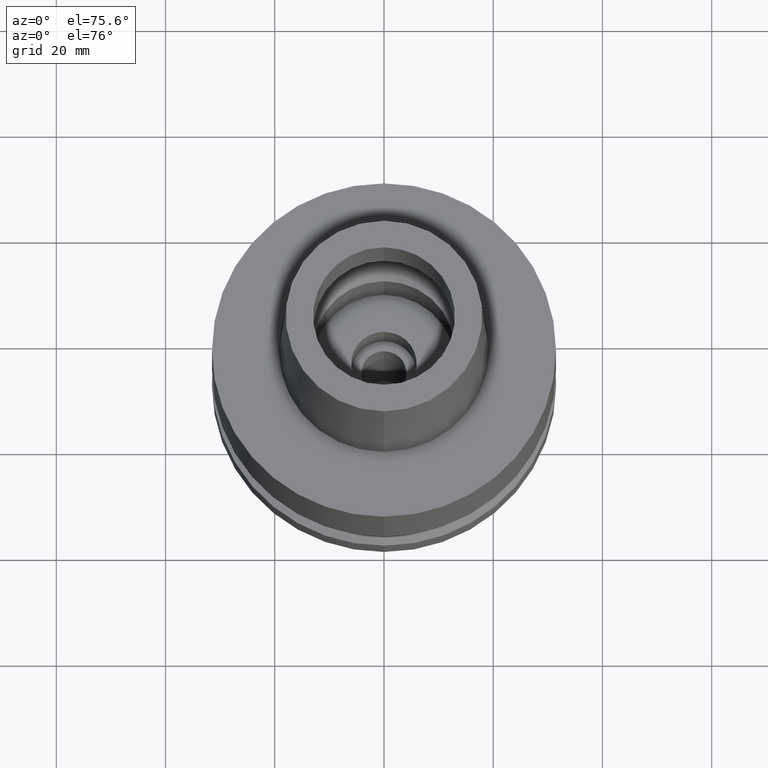
[diagram: clean part render]
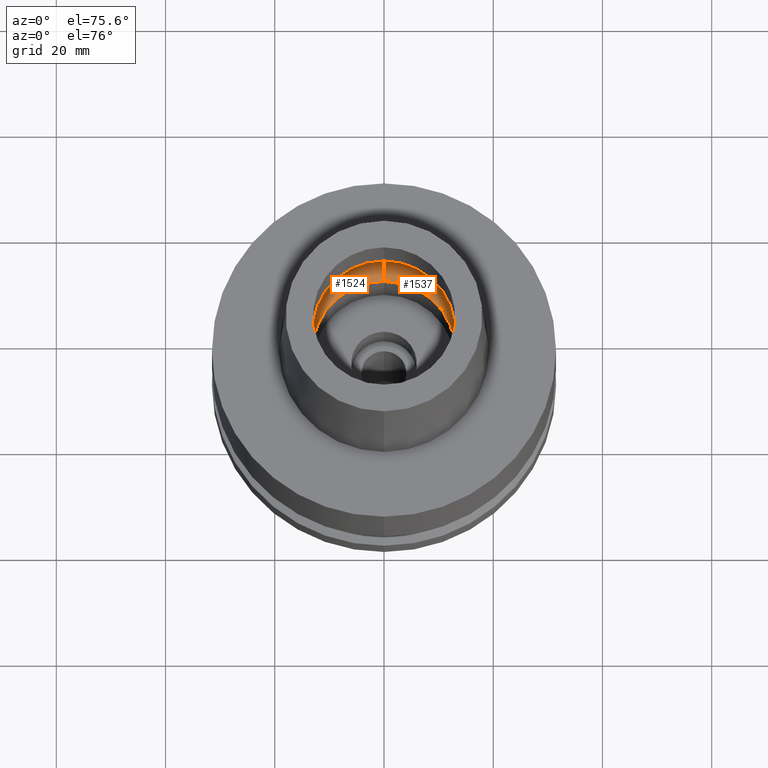
[diagram: same view with one multi-face feature highlighted, each face labeled with its STEP entity id]
A machine part, auxiliary view. The highlighted faces form ONE feature: a constant-radius fillet chain: 2 tangent blend faces with common blend radius 6 mm. The faces share edges in the B-rep.
Their STEP definitions:
[1] entity #1524 (Torus):
#658=CARTESIAN_POINT('',(0.E0,0.E0,4.984757729337E-2));
#659=DIRECTION('',(0.E0,0.E0,1.E0));
#660=DIRECTION('',(0.E0,1.E0,0.E0));
#661=AXIS2_PLACEMENT_3D('',#658,#659,#660);
#666=CARTESIAN_POINT('',(0.E0,-1.E1,5.246E0));
#667=DIRECTION('',(-1.E0,0.E0,0.E0));
#668=DIRECTION('',(0.E0,-5.E-1,-8.660254037844E-1));
#669=AXIS2_PLACEMENT_3D('',#666,#667,#668);
#674=CARTESIAN_POINT('',(0.E0,0.E0,5.246E0));
#675=DIRECTION('',(0.E0,0.E0,-1.E0));
#676=DIRECTION('',(0.E0,-1.E0,0.E0));
#677=AXIS2_PLACEMENT_3D('',#674,#675,#676);
#682=CARTESIAN_POINT('',(0.E0,1.E1,5.246E0));
#683=DIRECTION('',(1.E0,0.E0,0.E0));
#684=DIRECTION('',(0.E0,5.E-1,-8.660254037844E-1));
#685=AXIS2_PLACEMENT_3D('',#682,#683,#684);
#796=CARTESIAN_POINT('',(0.E0,1.6E1,5.246E0));
#797=VERTEX_POINT('',#796);
#798=CARTESIAN_POINT('',(0.E0,-1.6E1,5.246E0));
#799=VERTEX_POINT('',#798);
#800=CARTESIAN_POINT('',(0.E0,1.3E1,4.984757729337E-2));
#801=VERTEX_POINT('',#800);
#802=CARTESIAN_POINT('',(0.E0,-1.3E1,4.984757729337E-2));
#803=VERTEX_POINT('',#802);
#1510=CARTESIAN_POINT('',(0.E0,0.E0,5.246E0));
#1511=DIRECTION('',(0.E0,0.E0,-1.E0));
#1512=DIRECTION('',(0.E0,-1.E0,0.E0));
#1513=AXIS2_PLACEMENT_3D('',#1510,#1511,#1512);
#1514=TOROIDAL_SURFACE('',#1513,1.E1,6.E0);
#1516=ORIENTED_EDGE('',*,*,#1515,.F.);
#1517=ORIENTED_EDGE('',*,*,#1505,.T.);
#1519=ORIENTED_EDGE('',*,*,#1518,.T.);
#1521=ORIENTED_EDGE('',*,*,#1520,.T.);
#1522=EDGE_LOOP('',(#1516,#1517,#1519,#1521));
#1523=FACE_OUTER_BOUND('',#1522,.F.);
#662=CIRCLE('',#661,1.3E1);
#670=CIRCLE('',#669,6.E0);
#678=CIRCLE('',#677,1.6E1);
#686=CIRCLE('',#685,6.E0);
#1505=EDGE_CURVE('',#801,#803,#662,.T.);
#1515=EDGE_CURVE('',#801,#797,#686,.T.);
#1518=EDGE_CURVE('',#803,#799,#670,.T.);
#1520=EDGE_CURVE('',#799,#797,#678,.T.);
#1524=ADVANCED_FACE('',(#1523),#1514,.F.);
[2] entity #1537 (Torus):
#666=CARTESIAN_POINT('',(0.E0,-1.E1,5.246E0));
#667=DIRECTION('',(-1.E0,0.E0,0.E0));
#668=DIRECTION('',(0.E0,-5.E-1,-8.660254037844E-1));
#669=AXIS2_PLACEMENT_3D('',#666,#667,#668);
#682=CARTESIAN_POINT('',(0.E0,1.E1,5.246E0));
#683=DIRECTION('',(1.E0,0.E0,0.E0));
#684=DIRECTION('',(0.E0,5.E-1,-8.660254037844E-1));
#685=AXIS2_PLACEMENT_3D('',#682,#683,#684);
#690=CARTESIAN_POINT('',(0.E0,0.E0,5.246E0));
#691=DIRECTION('',(0.E0,0.E0,-1.E0));
#692=DIRECTION('',(0.E0,1.E0,0.E0));
#693=AXIS2_PLACEMENT_3D('',#690,#691,#692);
#698=CARTESIAN_POINT('',(0.E0,0.E0,4.984757729337E-2));
#699=DIRECTION('',(0.E0,0.E0,1.E0));
#700=DIRECTION('',(0.E0,-1.E0,0.E0));
#701=AXIS2_PLACEMENT_3D('',#698,#699,#700);
#796=CARTESIAN_POINT('',(0.E0,1.6E1,5.246E0));
#797=VERTEX_POINT('',#796);
#798=CARTESIAN_POINT('',(0.E0,-1.6E1,5.246E0));
#799=VERTEX_POINT('',#798);
#800=CARTESIAN_POINT('',(0.E0,1.3E1,4.984757729337E-2));
#801=VERTEX_POINT('',#800);
#802=CARTESIAN_POINT('',(0.E0,-1.3E1,4.984757729337E-2));
#803=VERTEX_POINT('',#802);
#1525=CARTESIAN_POINT('',(0.E0,0.E0,5.246E0));
#1526=DIRECTION('',(0.E0,0.E0,-1.E0));
#1527=DIRECTION('',(0.E0,-1.E0,0.E0));
#1528=AXIS2_PLACEMENT_3D('',#1525,#1526,#1527);
#1529=TOROIDAL_SURFACE('',#1528,1.E1,6.E0);
#1530=ORIENTED_EDGE('',*,*,#1515,.T.);
#1532=ORIENTED_EDGE('',*,*,#1531,.T.);
#1533=ORIENTED_EDGE('',*,*,#1518,.F.);
#1534=ORIENTED_EDGE('',*,*,#1489,.T.);
#1535=EDGE_LOOP('',(#1530,#1532,#1533,#1534));
#1536=FACE_OUTER_BOUND('',#1535,.F.);
#670=CIRCLE('',#669,6.E0);
#686=CIRCLE('',#685,6.E0);
#694=CIRCLE('',#693,1.6E1);
#702=CIRCLE('',#701,1.3E1);
#1489=EDGE_CURVE('',#803,#801,#702,.T.);
#1515=EDGE_CURVE('',#801,#797,#686,.T.);
#1518=EDGE_CURVE('',#803,#799,#670,.T.);
#1531=EDGE_CURVE('',#797,#799,#694,.T.);
#1537=ADVANCED_FACE('',(#1536),#1529,.F.);